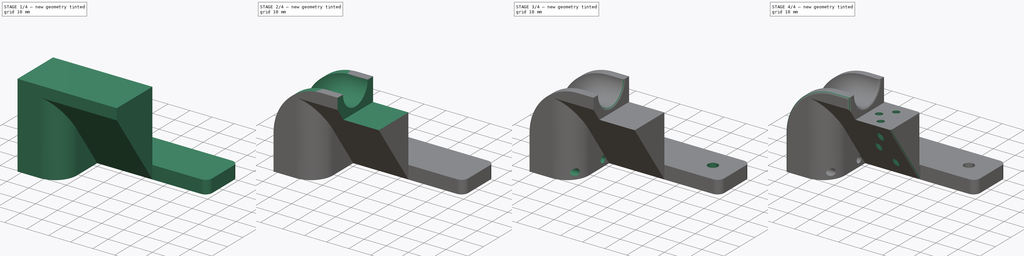
[diagram: build sequence overview — one tinted view per stage of 4, left to right]
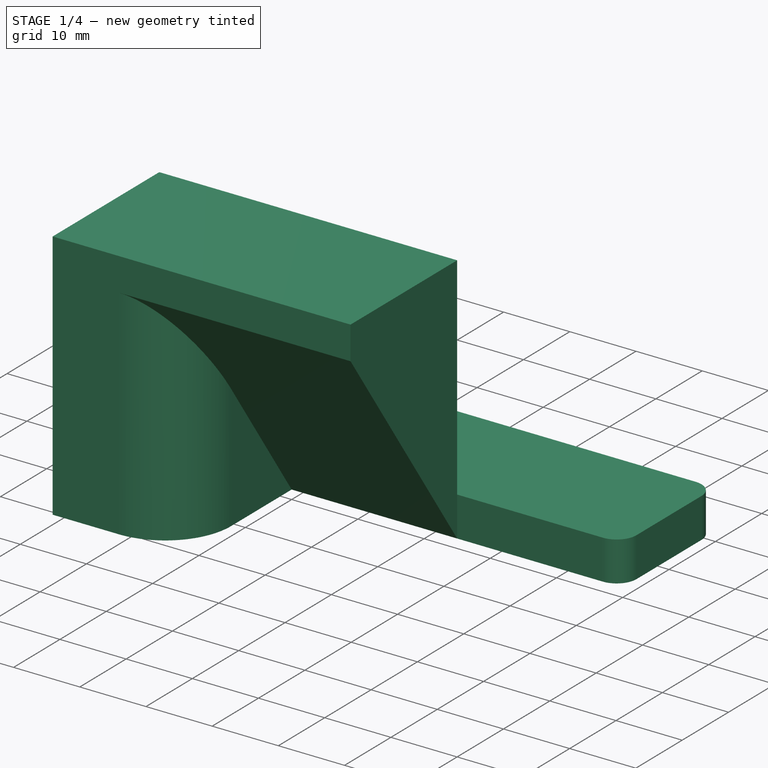
[diagram: stage 1 of 4 — iso view after this stage's code; geometry added in this stage tinted green]
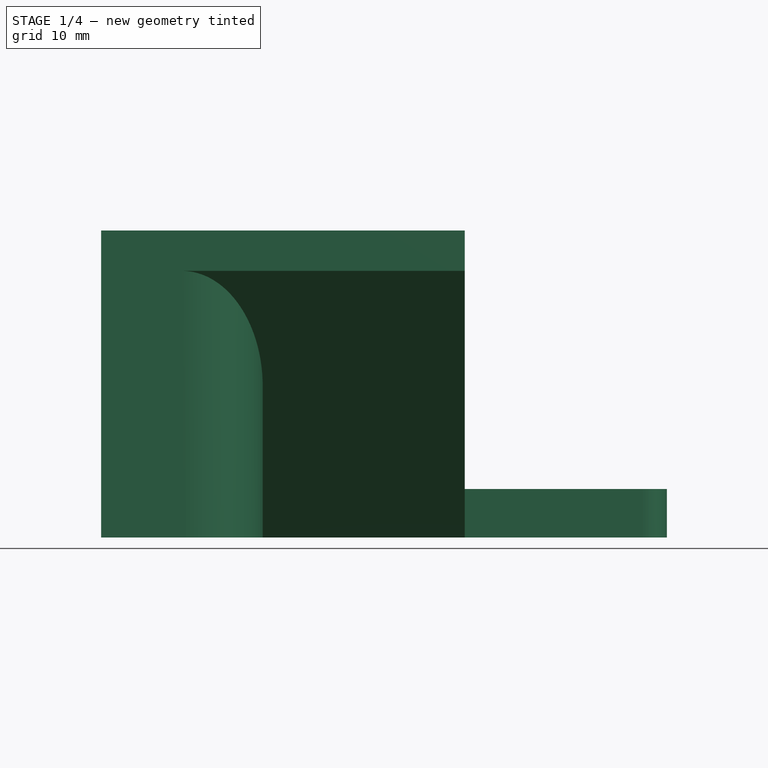
[diagram: stage 1 of 4 — front view after this stage's code; geometry added in this stage tinted green]
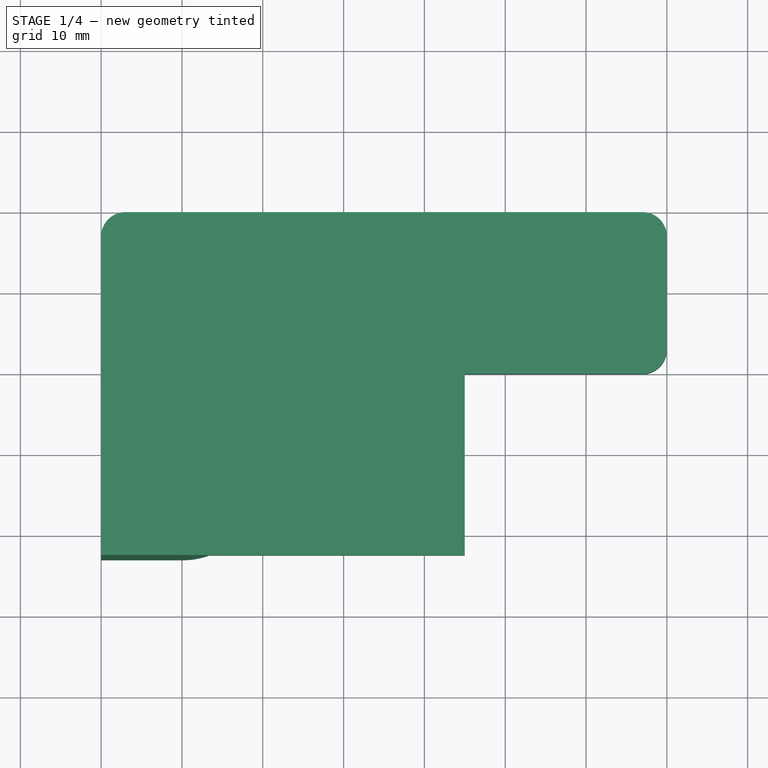
[diagram: stage 1 of 4 — top view after this stage's code; geometry added in this stage tinted green]
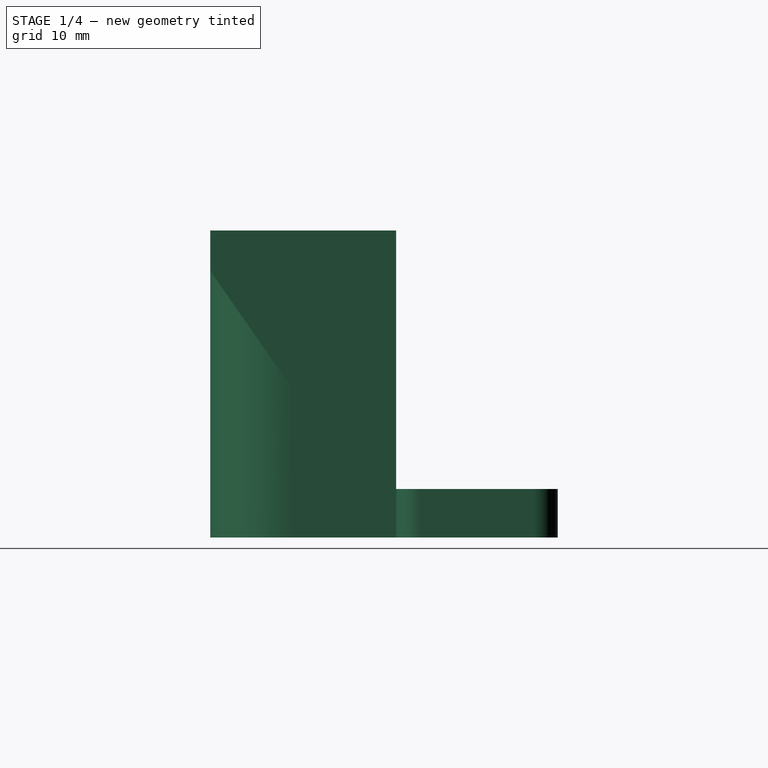
[diagram: stage 1 of 4 — right view after this stage's code; geometry added in this stage tinted green]
FCSTD DOCUMENT  (FreeCAD 1.1R39287 (Git))
Label: Energy Chain to Gantry v0.02
License: All rights reserved
LicenseURL: https://en.wikipedia.org/wiki/All_rights_reserved
objects: Sketcher::SketchObject×11, PartDesign::Pocket×6, Spreadsheet::Sheet×3, PartDesign::Pad×3, PartDesign::Fillet×3, PartDesign::Body×2, PartDesign::SubtractivePipe×1, PartDesign::Chamfer×1
note: 66 computed .brp shape members not serialized (recipe doc carries the construction recipe); baked Part::Feature solids carry a one-line shape summary decoded from their .brp

FEATURE [Spreadsheet::Sheet] Spreadsheet  label="Spreadsheet.Specifications"
  cells = A2='This work is licensed under the Creative Commons Attribution-ShareAlike 4.0 International License.; A3='http://creativecommons.org/licenses/by-sa/4.0/
FEATURE [Spreadsheet::Sheet] Spreadsheet001  label="Spreadsheet.Parts"
  cells = A4='Gantry; B4='Mount; C4(GantryMountMm)=4.5; A6='Chain; B6='Mount; C6(ChainMountMm)=2.9
FEATURE [Spreadsheet::Sheet] Spreadsheet002  label="Spreadsheet.BoM"
FEATURE [Sketcher::SketchObject] Sketch  label="SketchBase"
  ArcFitTolerance = 1e-06
  AttachmentSupport = -> [XY_Plane]
  FullyConstrained = true
  MakeInternals = false
  MapMode = 5
  sketch-geometry (10):
    g0: LineSegment StartX=0 StartY=0 StartZ=0 EndX=67 EndY=0 EndZ=0
    g1: LineSegment StartX=70 StartY=3 StartZ=0 EndX=70 EndY=17 EndZ=0
    g2: LineSegment StartX=67 StartY=20 StartZ=0 EndX=3 EndY=20 EndZ=0
    g3: LineSegment StartX=0 StartY=17 StartZ=0 EndX=0 EndY=0 EndZ=0
    g4: ArcOfCircle CenterX=67 CenterY=17 CenterZ=0 NormalX=0 NormalY=0 NormalZ=1 AngleXU=0 Radius=3 StartAngle=5e-16 EndAngle=1.5708
    g5: GeomPoint [constr] X=70 Y=20 Z=0
    g6: ArcOfCircle CenterX=67 CenterY=3 CenterZ=0 NormalX=0 NormalY=0 NormalZ=1 AngleXU=0 Radius=3 StartAngle=4.71239 EndAngle=6.28319
    g7: GeomPoint [constr] X=70 Y=0 Z=0
    g8: ArcOfCircle CenterX=3 CenterY=17 CenterZ=0 NormalX=0 NormalY=0 NormalZ=1 AngleXU=0 Radius=3 StartAngle=1.5708 EndAngle=3.14159
    g9: GeomPoint [constr] X=0 Y=20 Z=0
  constraints (24):
    c: Horizontal(g0)
    c: Horizontal(g2)
    c: Vertical(g1)
    c: Vertical(g3)
    c: DistanceX(g-1,g7) = 70
    c: DistanceY(g7,g5) = 20
    c: PointOnObject(g5,g2)
    c: PointOnObject(g5,g1)
    c: Tangent(g2,g4) = -1.5708
    c: Tangent(g1,g4) = -1.5708
    c: PointOnObject(g7,g1)
    c: PointOnObject(g7,g0)
    c: Tangent(g1,g6) = -1.5708
    c: Tangent(g0,g6) = -1.5708
    c: PointOnObject(g-1,g0)
    c: PointOnObject(g-1,g3)
    c: Equal(g4,g6)
    c: Radius(g4) = 3
    c: PointOnObject(g9,g3)
    c: PointOnObject(g9,g2)
    c: Tangent(g3,g8) = -1.5708
    c: Tangent(g2,g8) = -1.5708
    c: Coincident(g3,g0)
    c: Equal(g4,g8)
FEATURE [PartDesign::Pad] Pad  label="PadBase"
  Direction = (0,0,1)
  Length = 6
  Length2 = 10
  Profile = -> Sketch
  ReferenceAxis = -> Sketch [N_Axis]
  Refine = true
  Suppressed = false
  Type = 0
FEATURE [Sketcher::SketchObject] Sketch001  label="SketchDrop"
  ArcFitTolerance = 1e-06
  AttachmentSupport = -> [Pad]
  ExternalGeometry = -> [Pad]
  FullyConstrained = true
  MakeInternals = false
  MapMode = 5
  Placement = pos=(0,0,0) rot=(0.57735,-0.57735,-0.57735;2.0944rad)
  sketch-geometry (4):
    g0: LineSegment StartX=0 StartY=37.99 StartZ=0 EndX=0 EndY=0 EndZ=0
    g1: LineSegment StartX=0 StartY=37.99 StartZ=0 EndX=23 EndY=37.99 EndZ=0
    g2: LineSegment StartX=23 StartY=0 StartZ=0 EndX=0 EndY=0 EndZ=0
    g3: LineSegment StartX=23 StartY=37.99 StartZ=0 EndX=23 EndY=0 EndZ=0
  constraints (11):
    c: Vertical(g0)
    c: Coincident(g1,g0)
    c: Horizontal(g1)
    c: Coincident(g2,g0)
    c: Horizontal(g2)
    c: DistanceX(g1,g1) = 23
    c: Coincident(g3,g1)
    c: Coincident(g3,g2)
    c: Vertical(g3)
    c: Coincident(g0,g-1)
    c: DistanceY(g3,g3) = 37.99
FEATURE [PartDesign::Pad] Pad001  label="PadDrop"
  BaseFeature = -> Pad
  Direction = (-1,0,0)
  Length = 45
  Length2 = 10
  Profile = -> Sketch001
  ReferenceAxis = -> Sketch001 [N_Axis]
  Refine = true
  Reversed = true
  Suppressed = false
  Type = 0
FEATURE [Sketcher::SketchObject] Sketch002  label="SketchDropCut"
  ArcFitTolerance = 1e-06
  AttachmentSupport = -> [Pad001]
  ExternalGeometry = -> [Pad001]
  FullyConstrained = true
  MakeInternals = false
  MapMode = 5
  Placement = pos=(45,0,0) rot=(0.57735,0.57735,0.57735;2.0944rad)
  sketch-geometry (3):
    g0: LineSegment StartX=-23 StartY=0 StartZ=0 EndX=-23 EndY=32.99 EndZ=0
    g1: LineSegment StartX=-23 StartY=32.99 StartZ=0 EndX=0 EndY=0 EndZ=0
    g2: LineSegment StartX=0 StartY=0 StartZ=0 EndX=-23 EndY=0 EndZ=0
  constraints (7):
    c: Coincident(g-4,g0)
    c: PointOnObject(g0,g-3)
    c: Coincident(g0,g1)
    c: Coincident(g1,g2)
    c: Coincident(g2,g0)
    c: Coincident(g1,g-1)
    c: DistanceY(g0,g-3) = 5
FEATURE [PartDesign::Pocket] Pocket  label="PocketDropCut"
  BaseFeature = -> Pad001
  Direction = (-1,0,0)
  Length = 25
  Length2 = 5
  Profile = -> Sketch002
  ReferenceAxis = -> Sketch002 [N_Axis]
  Refine = true
  Suppressed = false
  Type = 0
FEATURE [PartDesign::Fillet] Fillet  label="FilletTrayBack"
  Base = -> Pocket [Edge33]
  BaseFeature = -> Pocket
  Radius = 10
  Refine = true
  SupportTransform = false
  Suppressed = false
  UseAllEdges = false
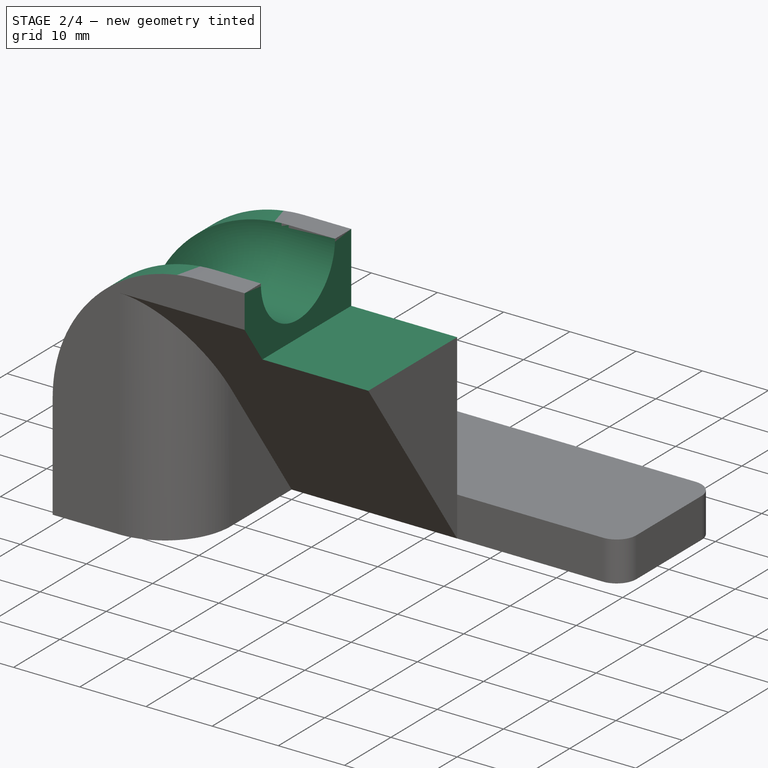
[diagram: stage 2 of 4 — iso view after this stage's code; geometry added in this stage tinted green]
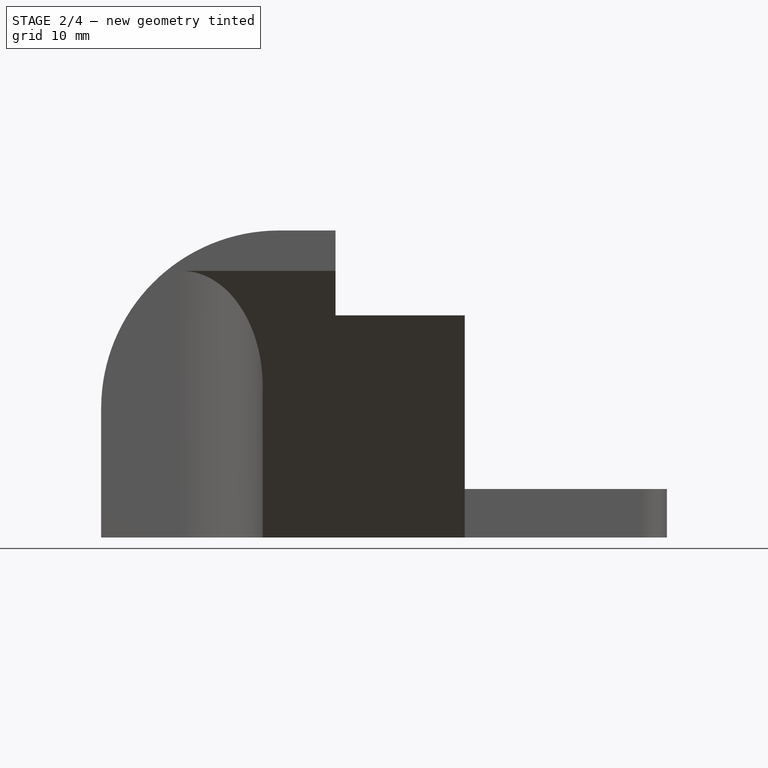
[diagram: stage 2 of 4 — front view after this stage's code; geometry added in this stage tinted green]
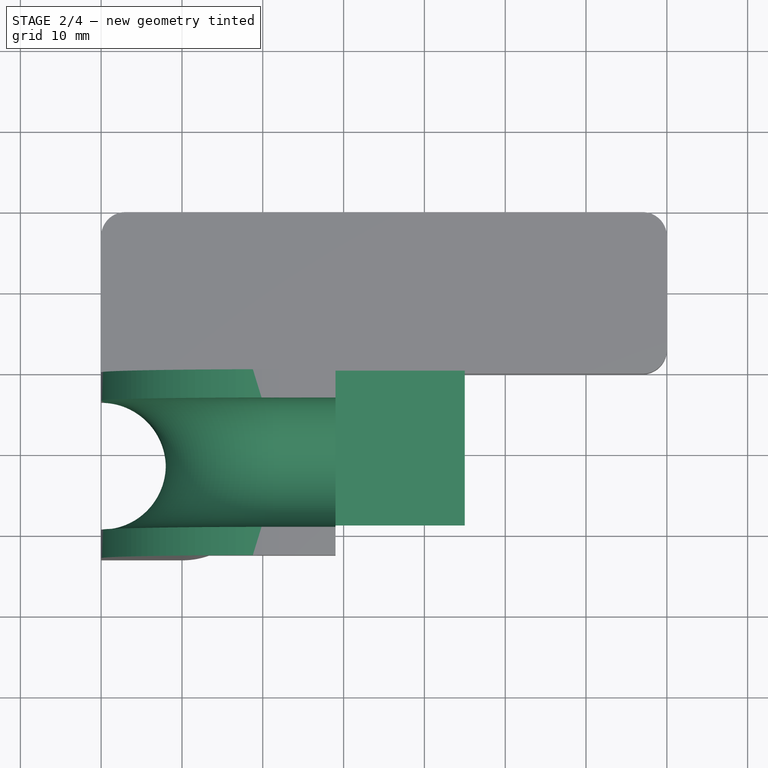
[diagram: stage 2 of 4 — top view after this stage's code; geometry added in this stage tinted green]
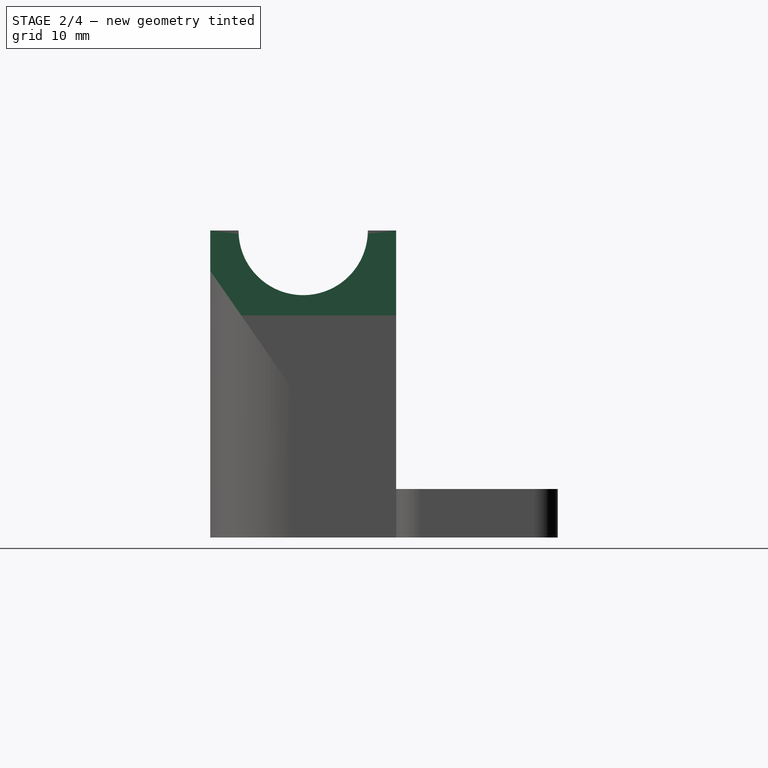
[diagram: stage 2 of 4 — right view after this stage's code; geometry added in this stage tinted green]
FEATURE [Sketcher::SketchObject] Sketch003  label="SketchTrayCutPath"
  ArcFitTolerance = 1e-06
  AttachmentSupport = -> [Fillet]
  ExternalGeometry = -> [Fillet]
  FullyConstrained = true
  MakeInternals = false
  MapMode = 5
  Placement = pos=(0,-23,0) rot=(1,0,0;1.5708rad)
  sketch-geometry (3):
    g0: ArcOfCircle CenterX=22 CenterY=15.99 CenterZ=0 NormalX=0 NormalY=0 NormalZ=1 AngleXU=0 Radius=18 StartAngle=1.5708 EndAngle=3.14159
    g1: LineSegment StartX=22 StartY=33.99 StartZ=0 EndX=45 EndY=33.99 EndZ=0
    g2: LineSegment StartX=4 StartY=15.99 StartZ=0 EndX=4 EndY=0 EndZ=0
  constraints (11):
    c: Coincident(g1,g0)
    c: Horizontal(g1)
    c: Coincident(g2,g0)
    c: PointOnObject(g2,g-1)
    c: Vertical(g2)
    c: PointOnObject(g1,g-3)
    c: DistanceY(g1,g-3) = 4
    c: DistanceX(g-1,g2) = 4
    c: Radius(g0) = 18
    c: Horizontal(g0,g0)
    c: Vertical(g0,g0)
FEATURE [Sketcher::SketchObject] Sketch005  label="SketchTrayCut"
  ArcFitTolerance = 1e-06
  AttachmentSupport = -> [Fillet]
  ExternalGeometry = -> [Fillet]
  FullyConstrained = true
  MakeInternals = false
  MapMode = 5
  Placement = pos=(45,0,0) rot=(0.57735,0.57735,0.57735;2.0944rad)
  sketch-geometry (2):
    g0: ArcOfCircle CenterX=-11.5 CenterY=37.99 CenterZ=0 NormalX=0 NormalY=0 NormalZ=1 AngleXU=0 Radius=8 StartAngle=3.14159 EndAngle=6.28319
    g1: LineSegment StartX=-19.5 StartY=37.99 StartZ=0 EndX=-3.5 EndY=37.99 EndZ=0
  constraints (6):
    c: PointOnObject(g0,g-3)
    c: Radius(g0) = 8
    c: Symmetric(g-3,g-3,g0)
    c: Coincident(g1,g0)
    c: Coincident(g1,g0)
    c: Horizontal(g1)
FEATURE [PartDesign::SubtractivePipe] SubtractivePipe  label="SubtractivePipeTray"
  AuxilleryCurvelinear = true
  AuxillerySpineTangent = false
  BaseFeature = -> Fillet
  Binormal = (0,0,0)
  Mode = 0
  Profile = -> Sketch005
  Refine = true
  Spine = -> Sketch003
  SpineTangent = false
  Suppressed = false
  Transformation = 0
  Transition = 0
FEATURE [Sketcher::SketchObject] Sketch006  label="SketchCornerCut"
  ArcFitTolerance = 1e-06
  AttachmentSupport = -> [SubtractivePipe]
  ExternalGeometry = -> [SubtractivePipe]
  FullyConstrained = true
  MakeInternals = false
  MapMode = 5
  Placement = pos=(0,-23,0) rot=(1,0,0;1.5708rad)
  sketch-geometry (5):
    g0: LineSegment StartX=-5 StartY=15.99 StartZ=0 EndX=-5 EndY=42.99 EndZ=0
    g1: LineSegment StartX=-5 StartY=42.99 StartZ=0 EndX=22 EndY=42.99 EndZ=0
    g2: LineSegment StartX=22 StartY=42.99 StartZ=0 EndX=22 EndY=37.99 EndZ=0
    g3: LineSegment StartX=-5 StartY=15.99 StartZ=0 EndX=0 EndY=15.99 EndZ=0
    g4: ArcOfCircle CenterX=22 CenterY=15.99 CenterZ=0 NormalX=0 NormalY=0 NormalZ=1 AngleXU=0 Radius=22 StartAngle=1.5708 EndAngle=3.14159
  constraints (14):
    c: Vertical(g0)
    c: Coincident(g0,g1)
    c: Horizontal(g1)
    c: Coincident(g1,g2)
    c: Vertical(g2)
    c: Coincident(g3,g0)
    c: Coincident(g3,g-3)
    c: Horizontal(g3)
    c: Coincident(g4,g-3)
    c: Coincident(g4,g3)
    c: Coincident(g4,g2)
    c: Equal(g3,g2)
    c: DistanceY(g2,g2) = 5
    c: Vertical(g4,g2)
FEATURE [PartDesign::Pocket] Pocket001  label="PocketCornerCut"
  BaseFeature = -> SubtractivePipe
  Direction = (0,1,-2e-16)
  Length = 5
  Length2 = 5
  Profile = -> Sketch006
  ReferenceAxis = -> Sketch006 [N_Axis]
  Refine = true
  Suppressed = false
  Type = 1
FEATURE [Sketcher::SketchObject] Sketch007  label="SketchChainPad"
  ArcFitTolerance = 1e-06
  AttachmentSupport = -> [Pocket001]
  ExternalGeometry = -> [Pocket001]
  FullyConstrained = true
  MakeInternals = false
  MapMode = 5
  Placement = pos=(45,0,0) rot=(0.57735,0.57735,0.57735;2.0944rad)
  sketch-geometry (4):
    g0: LineSegment StartX=-23 StartY=37.99 StartZ=0 EndX=-23 EndY=27.49 EndZ=0
    g1: LineSegment StartX=-23 StartY=27.49 StartZ=0 EndX=0 EndY=27.49 EndZ=0
    g2: LineSegment StartX=0 StartY=27.49 StartZ=0 EndX=0 EndY=37.99 EndZ=0
    g3: LineSegment StartX=0 StartY=37.99 StartZ=0 EndX=-23 EndY=37.99 EndZ=0
  constraints (11):
    c: Coincident(g0,g1)
    c: Coincident(g1,g2)
    c: Coincident(g2,g3)
    c: Coincident(g3,g0)
    c: Vertical(g0)
    c: Vertical(g2)
    c: Horizontal(g1)
    c: Horizontal(g3)
    c: Coincident(g0,g-3)
    c: PointOnObject(g1,g-2)
    c: Distance(g0,g0) = 10.5
FEATURE [PartDesign::Pocket] Pocket002  label="PocketChainPad"
  BaseFeature = -> Pocket001
  Direction = (-1,0,0)
  Length = 16
  Length2 = 5
  Profile = -> Sketch007
  ReferenceAxis = -> Sketch007 [N_Axis]
  Refine = true
  Suppressed = false
  Type = 0
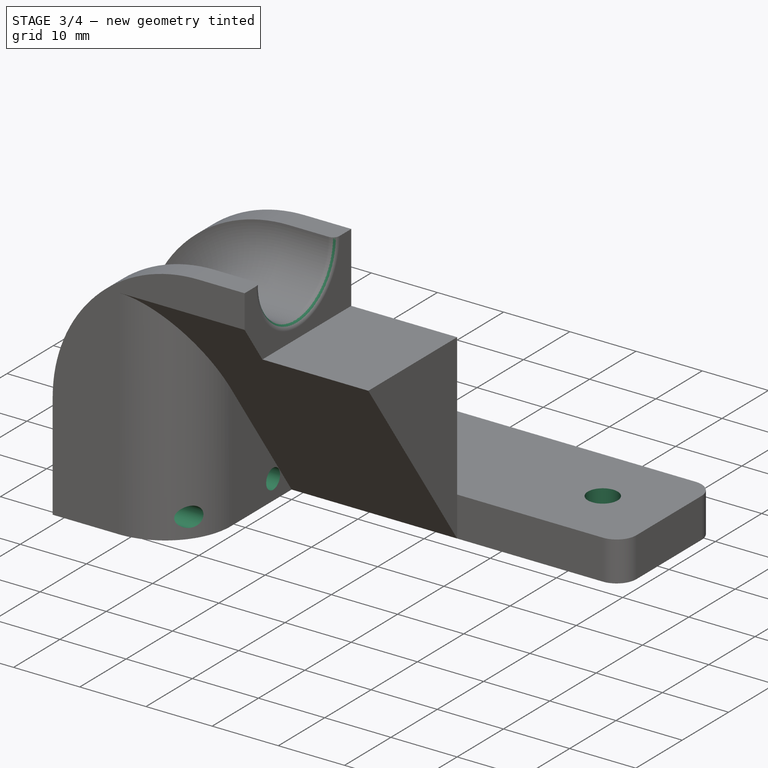
[diagram: stage 3 of 4 — iso view after this stage's code; geometry added in this stage tinted green]
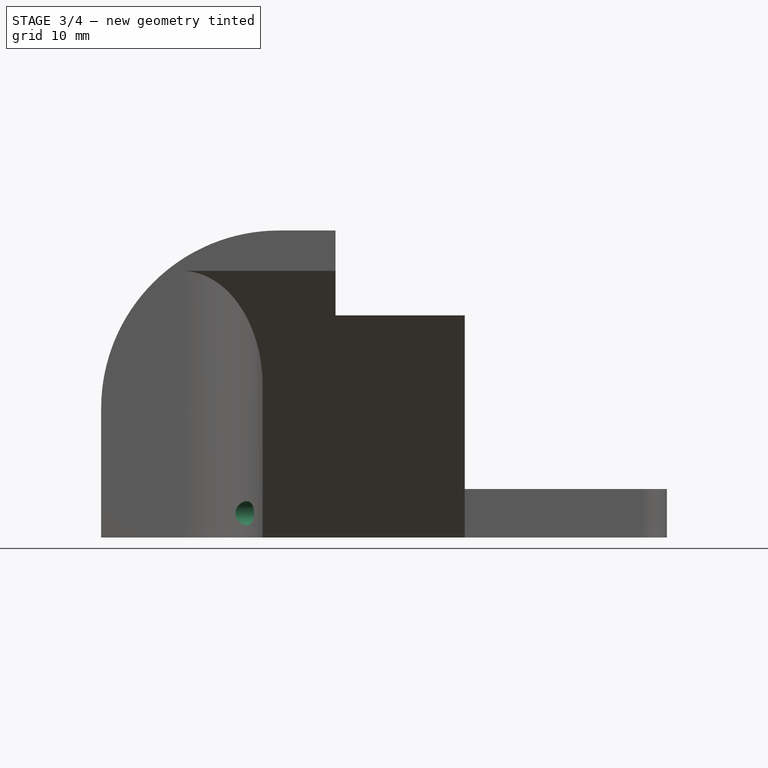
[diagram: stage 3 of 4 — front view after this stage's code; geometry added in this stage tinted green]
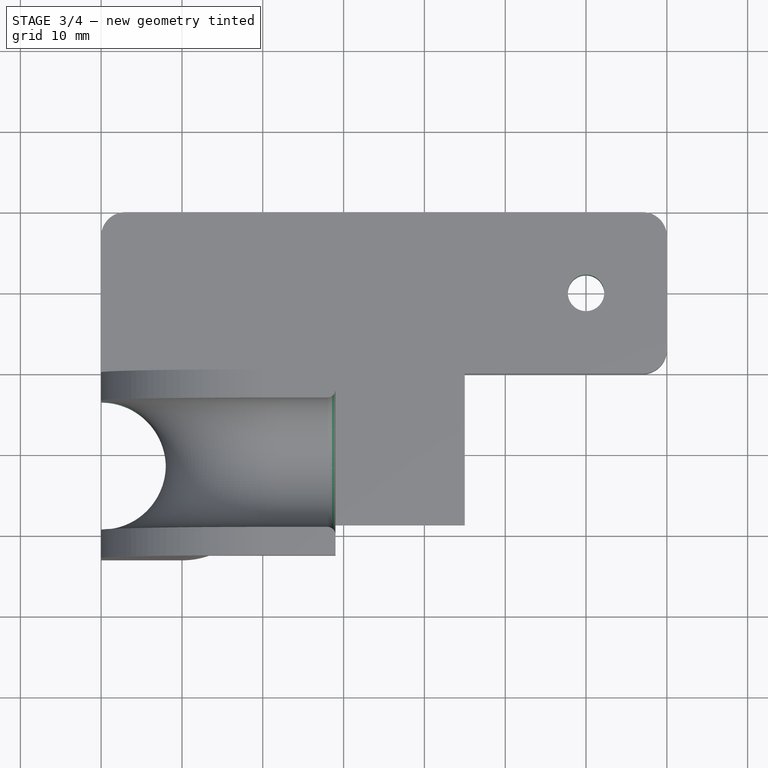
[diagram: stage 3 of 4 — top view after this stage's code; geometry added in this stage tinted green]
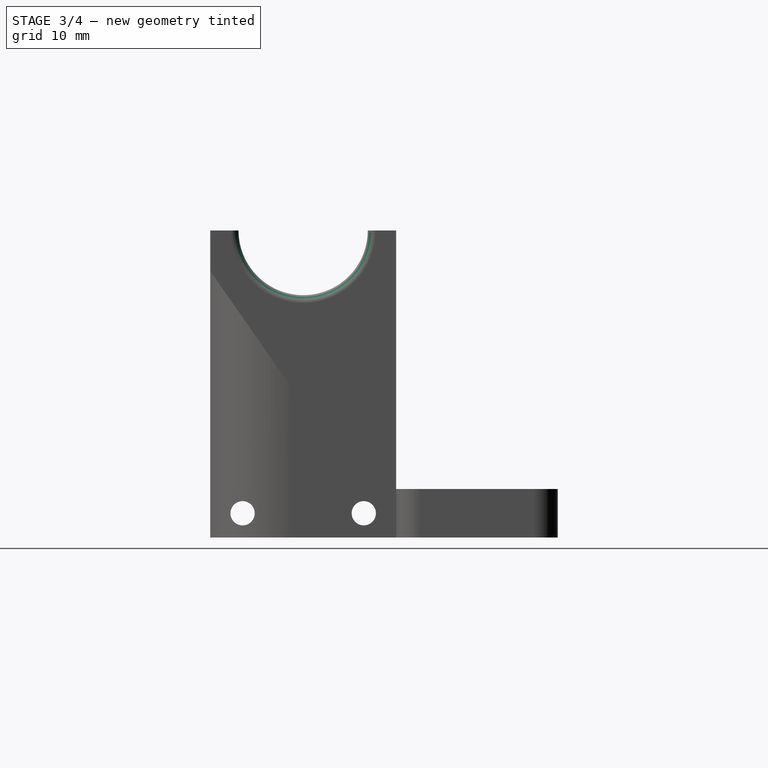
[diagram: stage 3 of 4 — right view after this stage's code; geometry added in this stage tinted green]
FEATURE [PartDesign::Fillet] Fillet001  label="FilletTray"
  Base = -> Pocket002 [Edge48,Edge11]
  BaseFeature = -> Pocket002
  Radius = 1
  Refine = true
  SupportTransform = false
  Suppressed = false
  UseAllEdges = false
FEATURE [Sketcher::SketchObject] Sketch008  label="SketchChainMount"
  ArcFitTolerance = 1e-06
  AttachmentSupport = -> [Fillet001]
  ExternalGeometry = -> [Fillet001]
  FullyConstrained = false
  MakeInternals = false
  MapMode = 5
  Placement = pos=(0,0,27.49) rot=(0,0,1;0rad)
  expr: Constraints[2] = <<Spreadsheet.Parts>>.ChainMountMm
  sketch-geometry (7):
    g0: Circle CenterX=37.25 CenterY=-4.58275 CenterZ=0 NormalX=0 NormalY=0 NormalZ=1 AngleXU=0 Radius=1.45
    g1: Circle CenterX=37.25 CenterY=-14.5828 CenterZ=0 NormalX=0 NormalY=0 NormalZ=1 AngleXU=0 Radius=1.45
    g2: Circle CenterX=33 CenterY=-9.58275 CenterZ=0 NormalX=0 NormalY=0 NormalZ=1 AngleXU=0 Radius=1.45
    g3: LineSegment [constr] StartX=37.25 StartY=-4.58275 StartZ=0 EndX=37.25 EndY=-14.5828 EndZ=0
    g4: LineSegment [constr] StartX=33 StartY=-9.58275 StartZ=0 EndX=37.25 EndY=-9.58275 EndZ=0
    g5: GeomPoint [constr] X=29 Y=-9.58275 Z=0
    g6: LineSegment [constr] StartX=29 StartY=-9.58275 StartZ=0 EndX=33 EndY=-9.58275 EndZ=0
  constraints (15):
    c: Equal(g2,g1)
    c: Equal(g1,g0)
    c: Diameter(g0) = 2.9
    c: Coincident(g3,g0)
    c: Coincident(g3,g1)
    c: Coincident(g4,g2)
    c: Horizontal(g4)
    c: Symmetric(g3,g3,g4)
    c: Vertical(g3)
    c: DistanceY(g3,g3) = 10
    c: Distance(g4,g4) = 4.25
    c: Coincident(g6,g5)
    c: Coincident(g6,g2)
    c: DistanceX(g6,g6) = 4
    c: Symmetric(g-3,g-3,g5)
FEATURE [Sketcher::SketchObject] Sketch009  label="SketchMountGantry"
  ArcFitTolerance = 1e-06
  FullyConstrained = true
  MakeInternals = false
  MapMode = 5
  Placement = pos=(0,0,6) rot=(0,0,1;0rad)
  sketch-geometry (2):
    g0: Circle CenterX=60 CenterY=10 CenterZ=0 NormalX=0 NormalY=0 NormalZ=1 AngleXU=0 Radius=2.25
    g1: GeomPoint [constr] X=70 Y=10 Z=0
  constraints (4):
    c: DistanceX(g-1,g0) = 60
    c: Diameter(g0) = 4.5
    c: Symmetric(g-3,g-3,g1)
    c: Horizontal(g0,g1)
FEATURE [PartDesign::Pocket] Pocket004  label="PocketMountGantry"
  BaseFeature = -> Fillet001
  Direction = (0,0,-1)
  Length = 5
  Length2 = 5
  Profile = -> Sketch009
  ReferenceAxis = -> Sketch009 [N_Axis]
  Refine = true
  Suppressed = false
  Type = 1
FEATURE [Sketcher::SketchObject] Sketch010  label="SketchZipTie"
  ArcFitTolerance = 1e-06
  AttachmentSupport = -> [Pocket004]
  ExternalGeometry = -> [Pocket004]
  FullyConstrained = true
  MakeInternals = false
  MapMode = 5
  Placement = pos=(20,0,0) rot=(0.57735,0.57735,0.57735;2.0944rad)
  sketch-geometry (5):
    g0: Circle CenterX=-4 CenterY=3 CenterZ=0 NormalX=0 NormalY=0 NormalZ=1 AngleXU=0 Radius=1.5
    g1: Circle CenterX=-19 CenterY=3 CenterZ=0 NormalX=0 NormalY=0 NormalZ=1 AngleXU=0 Radius=1.5
    g2: LineSegment [constr] StartX=-19 StartY=3 StartZ=0 EndX=-4 EndY=3 EndZ=0
    g3: GeomPoint [constr] X=-11.5 Y=3 Z=0
    g4: GeomPoint [constr] X=-11.5 Y=1 Z=0
  constraints (10):
    c: Equal(g1,g0)
    c: Diameter(g0) = 3
    c: Coincident(g2,g1)
    c: Coincident(g2,g0)
    c: Horizontal(g2)
    c: Symmetric(g2,g2,g3)
    c: DistanceY(g-3,g3) = 3
    c: DistanceX(g2,g2) = 15
    c: Symmetric(g-5,g-5,g4)
    c: Vertical(g3,g4)
FEATURE [PartDesign::Pocket] Pocket005  label="PocketZipTie"
  BaseFeature = -> Pocket004
  Direction = (-1,0,0)
  Length = 5
  Length2 = 5
  Profile = -> Sketch010
  ReferenceAxis = -> Sketch010 [N_Axis]
  Refine = true
  Suppressed = false
  Type = 1
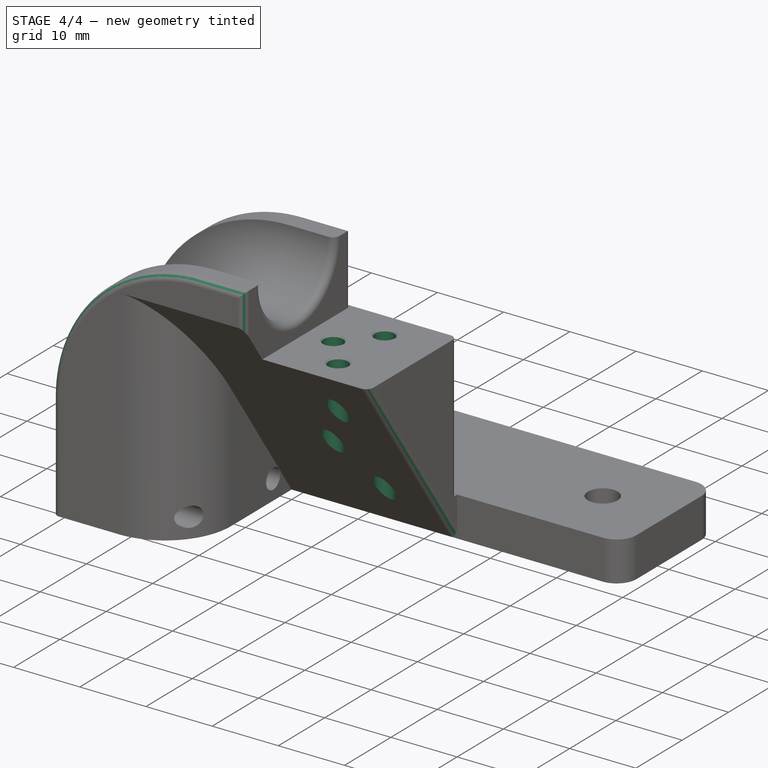
[diagram: stage 4 of 4 — iso view after this stage's code; geometry added in this stage tinted green]
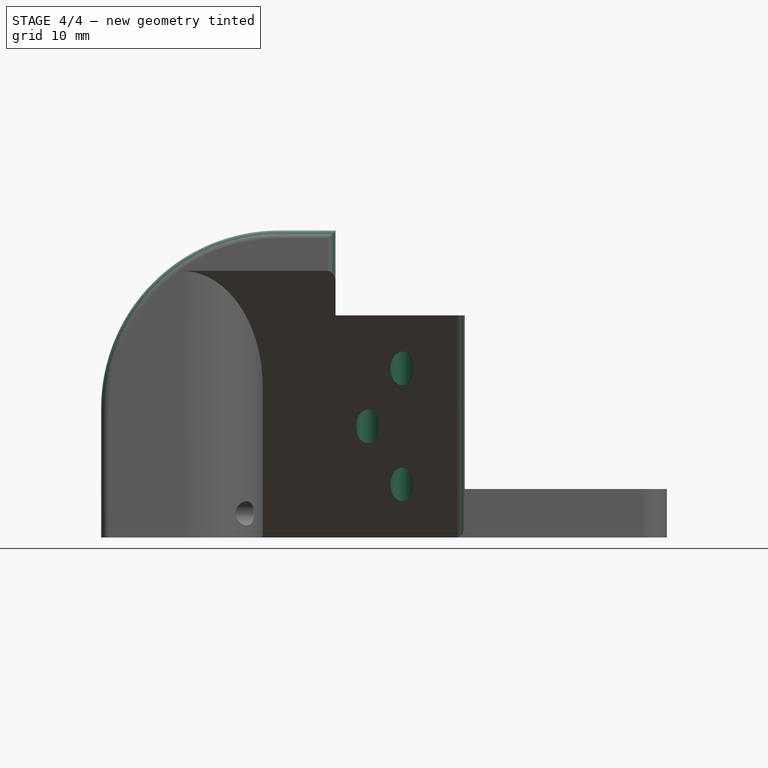
[diagram: stage 4 of 4 — front view after this stage's code; geometry added in this stage tinted green]
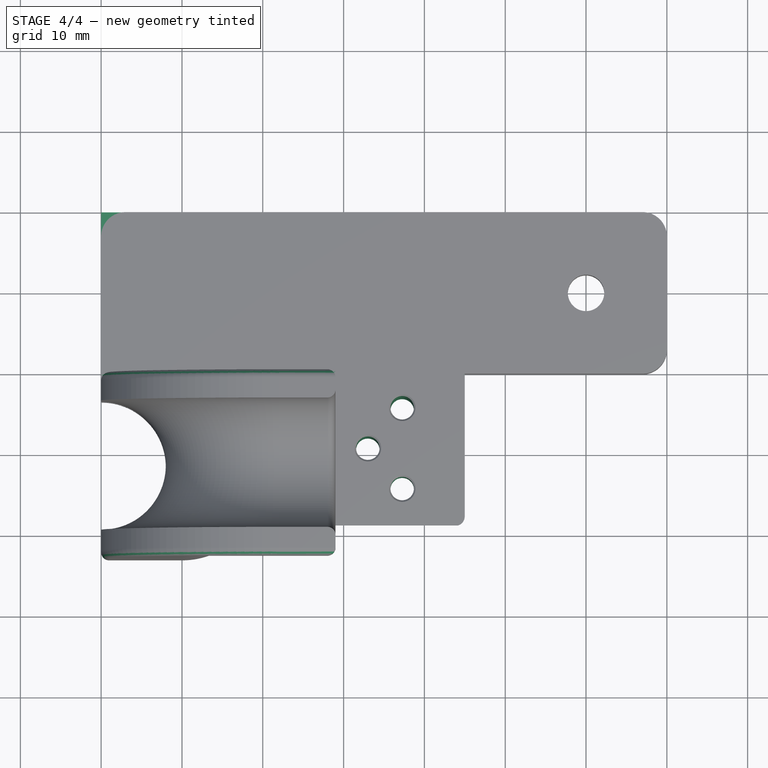
[diagram: stage 4 of 4 — top view after this stage's code; geometry added in this stage tinted green]
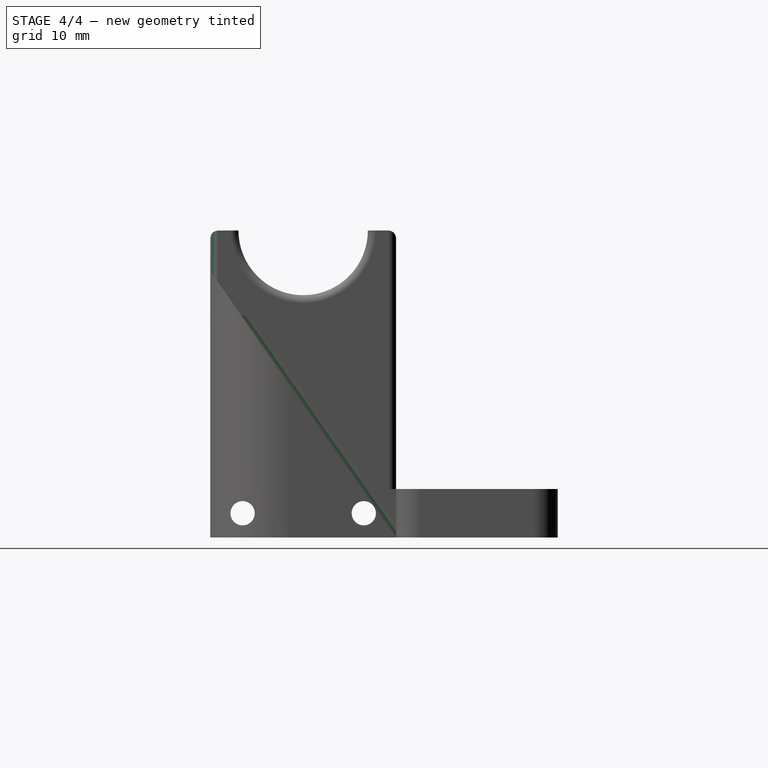
[diagram: stage 4 of 4 — right view after this stage's code; geometry added in this stage tinted green]
FEATURE [Sketcher::SketchObject] Sketch011  label="SketchTest"
  ArcFitTolerance = 1e-06
  AttachmentSupport = -> [XY_Plane001]
  FullyConstrained = true
  MakeInternals = false
  MapMode = 5
  expr: Constraints[12] = <<Spreadsheet.Parts>>.ChainMountMm
  sketch-geometry (5):
    g0: LineSegment StartX=0 StartY=0 StartZ=0 EndX=20 EndY=0 EndZ=0
    g1: LineSegment StartX=20 StartY=0 StartZ=0 EndX=20 EndY=20 EndZ=0
    g2: LineSegment StartX=20 StartY=20 StartZ=0 EndX=0 EndY=20 EndZ=0
    g3: LineSegment StartX=0 StartY=20 StartZ=0 EndX=0 EndY=0 EndZ=0
    g4: Circle CenterX=10 CenterY=10 CenterZ=0 NormalX=0 NormalY=0 NormalZ=1 AngleXU=0 Radius=1.45
  constraints (13):
    c: Coincident(g0,g1)
    c: Coincident(g1,g2)
    c: Coincident(g2,g3)
    c: Coincident(g3,g0)
    c: Horizontal(g0)
    c: Horizontal(g2)
    c: Vertical(g1)
    c: Vertical(g3)
    c: Coincident(g0,g-1)
    c: Equal(g2,g1)
    c: Distance(g2,g2) = 20
    c: Symmetric(g1,g0,g4)
    c: Diameter(g4) = 2.9
FEATURE [PartDesign::Pad] Pad002  label="PadTest"
  Direction = (0,0,1)
  Length = 4
  Length2 = 10
  Profile = -> Sketch011
  ReferenceAxis = -> Sketch011 [N_Axis]
  Refine = true
  Suppressed = false
  Type = 0
FEATURE [PartDesign::Body] Body001  label="BodyTest"
  AllowCompound = false
  Group = -> [Sketch011,Pad002]
  Origin = -> Origin001
  Placement = pos=(0,0,-54) rot=(0,0,1;0rad)
  Tip = -> Pad002
FEATURE [PartDesign::Pocket] Pocket006  label="PocketChainMount"
  BaseFeature = -> Pocket005
  Direction = (0,0,-1)
  Length = 5
  Length2 = 5
  Profile = -> Sketch008
  ReferenceAxis = -> Sketch008 [N_Axis]
  Refine = true
  Suppressed = false
  Type = 1
FEATURE [PartDesign::Fillet] Fillet002  label="FilletDrop"
  Base = -> Pocket006 [Edge38,Edge39,Edge32,Edge22,Edge72,Edge71,Edge70,Edge68,Edge53]
  BaseFeature = -> Pocket006
  Radius = 1
  Refine = true
  SupportTransform = false
  Suppressed = false
  UseAllEdges = false
FEATURE [PartDesign::Chamfer] Chamfer
  Angle = 45
  Base = -> Fillet002 [Edge103,Edge102,Edge104]
  BaseFeature = -> Fillet002
  ChamferType = 0
  FlipDirection = false
  Refine = true
  Size = 0.2
  Size2 = 1
  SupportTransform = false
  Suppressed = false
  UseAllEdges = false
FEATURE [PartDesign::Body] Body  label="BodyReceiver"
  AllowCompound = false
  Group = -> [Sketch,Pad,Sketch001,Pad001,Sketch002,Pocket,Fillet,Sketch003,Sketch005,SubtractivePipe,Sketch006,Pocket001,Sketch007,Pocket002,Fillet001,Sketch008,Sketch009,Pocket004,Sketch010,Pocket005,Pocket006,Fillet002,Chamfer]
  Origin = -> Origin
  Tip = -> Chamfer
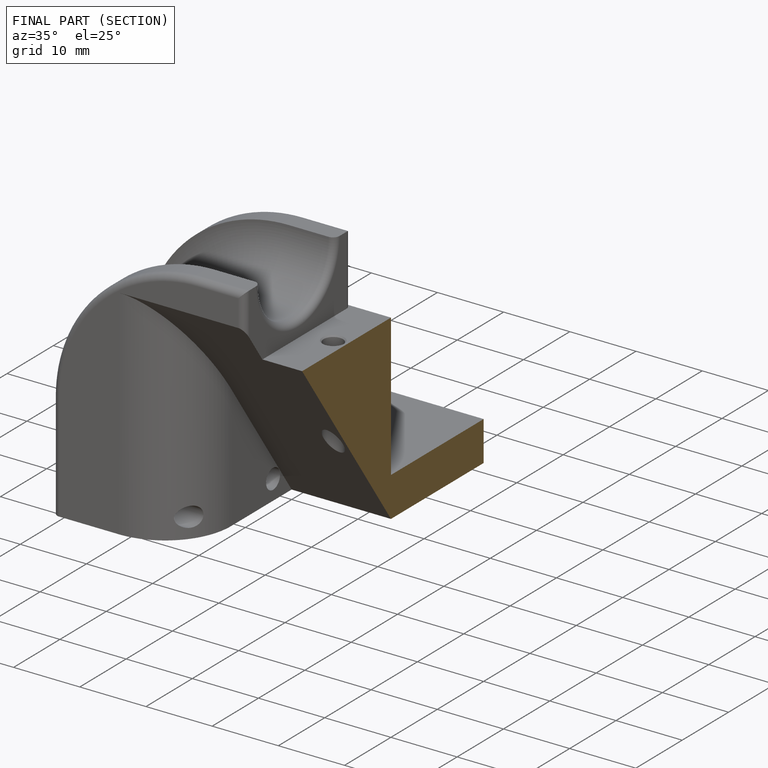
[diagram: finished part — half-section view (interior)]
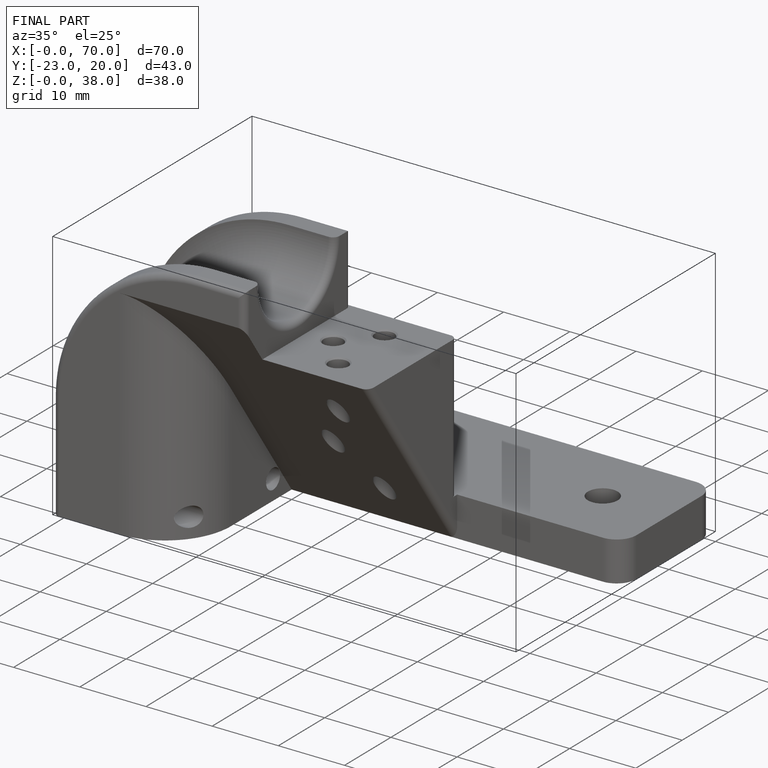
[diagram: finished part — iso view with bounding-box wireframe]
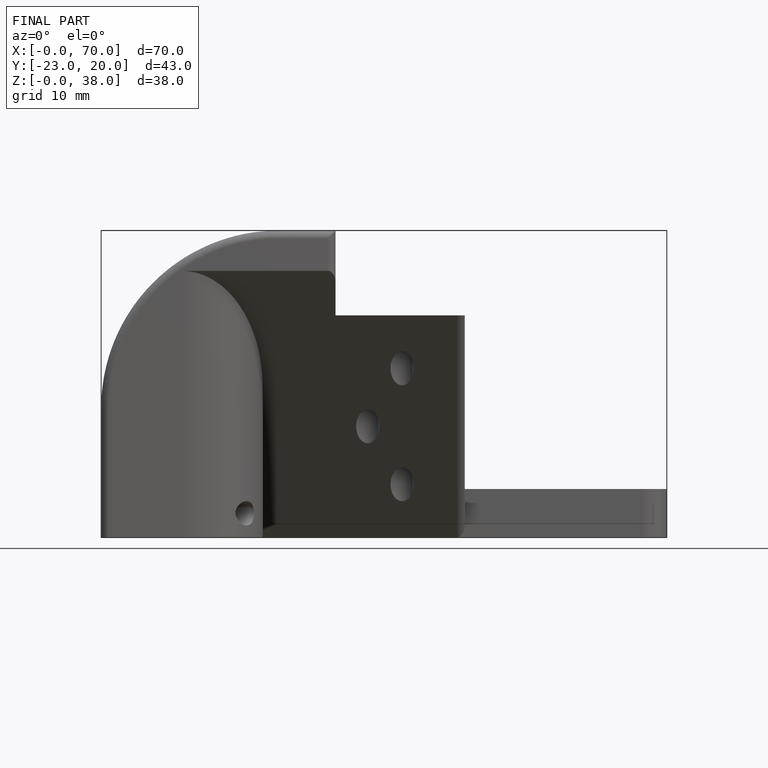
[diagram: finished part — front view with bounding-box wireframe]
